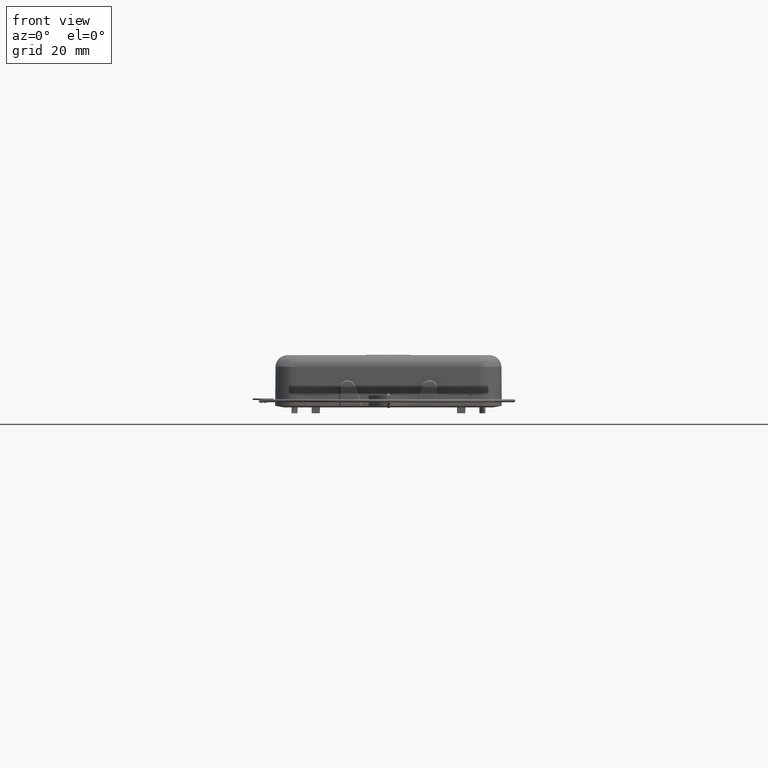
[diagram: clean part render]
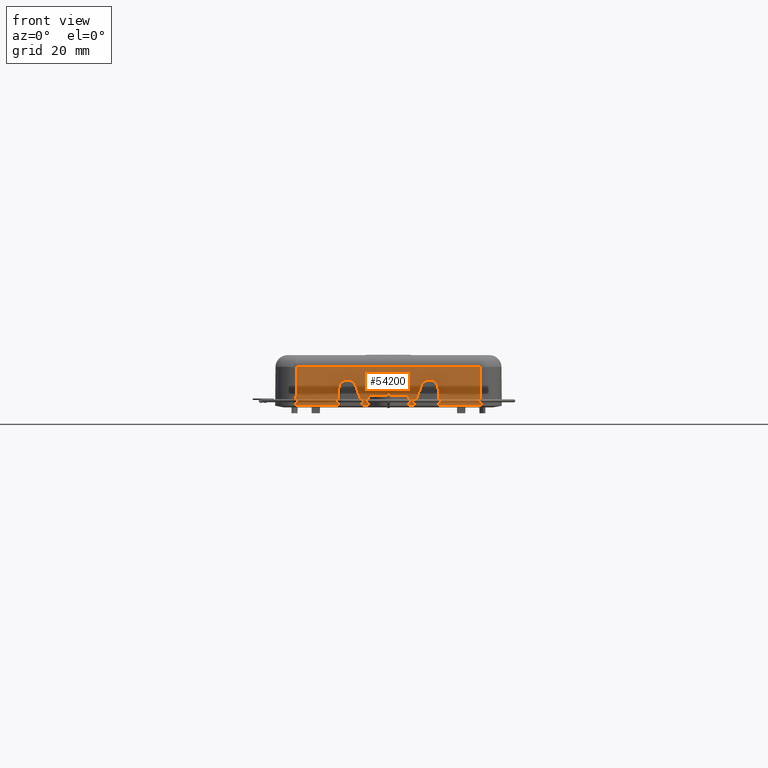
[diagram: same view with one face highlighted and labeled with its STEP entity id]
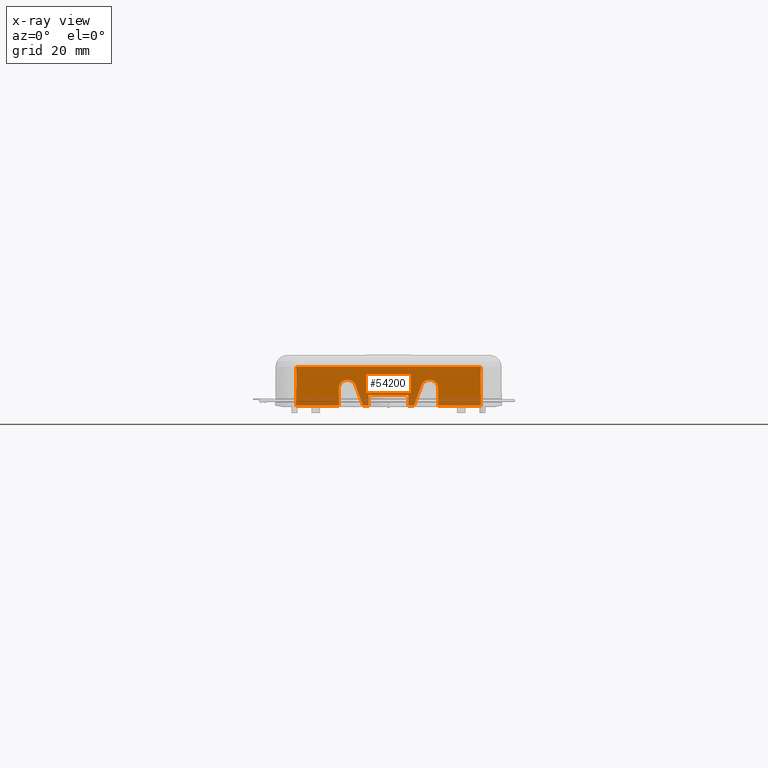
[diagram: x-ray of the same camera — body ghosted, the highlighted face saturated]
A machine part, front view. The second image highlights one B-rep face of the part: STEP entity #54200.
The next image is the same camera in x-ray: the body ghosted, the highlighted face saturated — about 5% of this face is hidden behind the body in this view.
In plain terms, the highlighted planar face has unit normal (-0, 1, -0.0087).
Its self-contained STEP definition (entity closure, byte-faithful):
#1720=CARTESIAN_POINT('',(44.9116194561816,38.9490919692077,-4.));
#1730=VERTEX_POINT('',#1720);
#1960=CARTESIAN_POINT('',(44.9420713150408,38.931510580298,
-0.510562599389786));
#1970=VERTEX_POINT('',#1960);
#2000=CARTESIAN_POINT('',(44.9465269273446,38.928938131335,0.));
#2010=DIRECTION('',(0.00872642474268048,-0.00503820367424958,
0.999949231718764));
#2020=VECTOR('',#2010,1.);
#2030=LINE('',#2000,#2020);
#2040=EDGE_CURVE('',#1730,#1970,#2030,.T.);
#11130=CARTESIAN_POINT('',(44.8284095908831,1.40726083356499,
-13.5349061419935));
#11140=VERTEX_POINT('',#11130);
#19560=CARTESIAN_POINT('',(44.9116194561816,25.6297281021009,-4.));
#19570=VERTEX_POINT('',#19560);
#21850=CARTESIAN_POINT('',(44.9116194561816,0.,-4.));
#21860=DIRECTION('',(0.,-1.,0.));
#21870=VECTOR('',#21860,1.);
#21880=LINE('',#21850,#21870);
#21890=EDGE_CURVE('',#1730,#19570,#21880,.T.);
#36740=CARTESIAN_POINT('',(44.9420713150408,1.2935991094073,
-0.510562599389765));
#36750=VERTEX_POINT('',#36740);
#36780=CARTESIAN_POINT('',(44.9459938400936,1.28967658435444,
-0.0610857484886175));
#36790=DIRECTION('',(0.00872620324394422,-0.00872620324394422,
0.99992385047757));
#36800=VECTOR('',#36790,1.);
#36810=LINE('',#36780,#36800);
#36820=EDGE_CURVE('',#11140,#36750,#36810,.T.);
#44590=CARTESIAN_POINT('',(44.9420713150408,48.9394100356543,
-0.510562599389774));
#44600=VERTEX_POINT('',#44590);
#44630=CARTESIAN_POINT('',(44.9465650050055,48.9394100356543,
0.00436326774918));
#44640=DIRECTION('',(0.00872653549837403,2.13866552087766E-16,
0.999961923064171));
#44650=VECTOR('',#44640,1.);
#44660=LINE('',#44630,#44650);
#44670=CARTESIAN_POINT('',(44.8915857387524,48.9394102822494,
-6.29563663728991));
#44680=VERTEX_POINT('',#44670);
#44690=EDGE_CURVE('',#44680,#44600,#44660,.T.);
#46640=CARTESIAN_POINT('',(44.9420713150408,40.8476997080894,
-0.510562599389772));
#46650=VERTEX_POINT('',#46640);
#46820=CARTESIAN_POINT('',(44.8829299187579,43.314301209594,
-7.28749536621914));
#46830=VERTEX_POINT('',#46820);
#46860=CARTESIAN_POINT('',(44.9465650050055,40.6602820195971,
0.00436326774918082));
#46870=DIRECTION('',(-0.00820029753763353,0.342008643580643,
-0.939661025496122));
#46880=VECTOR('',#46870,1.);
#46890=LINE('',#46860,#46880);
#46900=EDGE_CURVE('',#46650,#46830,#46890,.T.);
#52680=CARTESIAN_POINT('',(44.8829299187579,43.314301209594,
-7.28749536621914));
#52690=CARTESIAN_POINT('',(44.8827188198335,43.3231054771397,
-7.31168490701759));
#52700=CARTESIAN_POINT('',(44.8825087522476,43.3322312016153,
-7.33575626811133));
#52710=CARTESIAN_POINT('',(44.8793209857598,43.4763099551364,
-7.70103812687907));
#52720=CARTESIAN_POINT('',(44.8765836247159,43.6748973721896,
-8.01470863381267));
#52730=CARTESIAN_POINT('',(44.8727170822014,44.0919631751198,
-8.4577705212206));
#52740=CARTESIAN_POINT('',(44.871378395627,44.2771148472761,
-8.61116880873359));
#52750=CARTESIAN_POINT('',(44.869128929468,44.6809094558963,
-8.86893209939729));
#52760=CARTESIAN_POINT('',(44.8682268105651,44.897997513105,
-8.97230468673513));
#52770=CARTESIAN_POINT('',(44.8669090425009,45.3526343047364,
-9.12330595039451));
#52780=CARTESIAN_POINT('',(44.8664984688643,45.588432403312,
-9.17035302919151));
#52790=CARTESIAN_POINT('',(44.8661927174206,46.0662094142278,
-9.20538867439913));
#52800=CARTESIAN_POINT('',(44.8662987168985,46.3063485685894,
-9.1932423373119));
#52810=CARTESIAN_POINT('',(44.8666611678877,46.5422499291146,
-9.15170956772697));
#52820=CARTESIAN_POINT('',(44.867165057391,46.8702065989439,
-9.09396954973156));
#52830=CARTESIAN_POINT('',(44.868158123094,47.1857689953931,
-8.98017549132747));
#52840=CARTESIAN_POINT('',(44.8716746597009,47.8929708100918,
-8.57722030842171));
#52850=CARTESIAN_POINT('',(44.8746269174157,48.2450690427798,
-8.23892508203995));
#52860=CARTESIAN_POINT('',(44.8817482872649,48.7542928335001,
-7.42289692394865));
#52870=CARTESIAN_POINT('',(44.8858057294658,48.9034327501768,
-6.95796009916985));
#52880=CARTESIAN_POINT('',(44.8902997407415,48.9358756828549,
-6.44299741342979));
#52890=CARTESIAN_POINT('',(44.8906050011638,48.9374428927111,
-6.40801803370109));
#52900=CARTESIAN_POINT('',(44.8911352730727,48.939065821262,
-6.34725489145134));
#52910=CARTESIAN_POINT('',(44.891360500827,48.9394102190943,
-6.32144634711361));
#52920=CARTESIAN_POINT('',(44.8915857387524,48.9394102822494,
-6.29563663728991));
#52930=(BOUNDED_CURVE() B_SPLINE_CURVE(3,(#52680,#52690,#52700,#52710,
#52720,#52730,#52740,#52750,#52760,#52770,#52780,#52790,#52800,#52810,
#52820,#52830,#52840,#52850,#52860,#52870,#52880,#52890,#52900,#52910,
#52920),.UNSPECIFIED.,.F.,.F.) B_SPLINE_CURVE_WITH_KNOTS((4,2,2,2,2,2,3,
2,2,2,2,4),(0.,0.0707857369504251,1.07977054407531,1.7347981111436,
2.3898242144324,3.04485161135486,3.69987877285578,4.6105158546595,
5.92574943546881,7.24099120353902,7.33684118012813,7.40757330145207),
.UNSPECIFIED.) CURVE() GEOMETRIC_REPRESENTATION_ITEM() 
RATIONAL_B_SPLINE_CURVE((1.,1.,1.,1.,1.,1.,1.,1.,1.,1.,1.,1.,1.,1.,1.,1.
,1.,1.,1.,1.,1.,1.,1.,1.,1.)) REPRESENTATION_ITEM(''));
#52940=EDGE_CURVE('',#46830,#44680,#52930,.T.);
#52990=CARTESIAN_POINT('',(44.9465269273446,0.,0.));
#53000=DIRECTION('',(-0.999961923064171,0.,0.00872653549837393));
#53010=DIRECTION('',(0.,1.,0.));
#53020=AXIS2_PLACEMENT_3D('',#52990,#53000,#53010);
#53030=PLANE('',#53020);
#53040=CARTESIAN_POINT('',(44.9420713150409,55.7894100356543,
-0.51056259938979));
#53050=DIRECTION('',(1.21585745807815E-16,1.,-2.00295797874922E-16));
#53060=VECTOR('',#53050,1.);
#53070=LINE('',#53040,#53060);
#53080=CARTESIAN_POINT('',(44.9420713150408,15.6394100356536,
-0.510562599389768));
#53090=VERTEX_POINT('',#53080);
#53100=EDGE_CURVE('',#36750,#53090,#53070,.T.);
#53110=ORIENTED_EDGE('',*,*,#53100,.F.);
#53120=CARTESIAN_POINT('',(44.9465650050055,15.6394100356536,
0.00436326774918331));
#53130=DIRECTION('',(-0.00872653549837403,-2.20805445991673E-16,
-0.999961923064171));
#53140=VECTOR('',#53130,1.);
#53150=LINE('',#53120,#53140);
#53160=CARTESIAN_POINT('',(44.8915857369614,15.6394100356536,
-6.29563684252068));
#53170=VERTEX_POINT('',#53160);
#53180=EDGE_CURVE('',#53090,#53170,#53150,.T.);
#53190=ORIENTED_EDGE('',*,*,#53180,.F.);
#53200=CARTESIAN_POINT('',(44.8915857369614,15.6394097309123,
-6.29563684252068));
#53210=CARTESIAN_POINT('',(44.8913607560523,15.6394097189336,
-6.32141710119916));
#53220=CARTESIAN_POINT('',(44.8911357849295,15.6397532002426,
-6.34719623847976));
#53230=CARTESIAN_POINT('',(44.8877057802734,15.6502382243243,
-6.74023584195682));
#53240=CARTESIAN_POINT('',(44.8845368638613,15.7297732026482,
-7.10335769598832));
#53250=CARTESIAN_POINT('',(44.8777213892217,16.0660925120653,
-7.88433373493123));
#53260=CARTESIAN_POINT('',(44.8743401020885,16.3631559067693,
-8.27179086322081));
#53270=CARTESIAN_POINT('',(44.8704397725742,16.9281934187041,
-8.7187243573281));
#53280=CARTESIAN_POINT('',(44.8693511005581,17.133742918045,
-8.84347381408387));
#53290=CARTESIAN_POINT('',(44.8676397292467,17.570822166831,
-9.03957754252546));
#53300=CARTESIAN_POINT('',(44.8670236186799,17.8006689098443,
-9.1101768207086));
#53310=CARTESIAN_POINT('',(44.8666611678877,18.0365701421941,
-9.15170956772698));
#53320=CARTESIAN_POINT('',(44.8661573126689,18.3645044979519,
-9.20944565710919));
#53330=CARTESIAN_POINT('',(44.8661500902048,18.6999350181437,
-9.21027326951996));
#53340=CARTESIAN_POINT('',(44.8669921307119,19.2642708141305,
-9.11378498445541));
#53350=CARTESIAN_POINT('',(44.8675983983857,19.4944794210185,
-9.04431359009981));
#53360=CARTESIAN_POINT('',(44.8692911189862,19.9325494929263,
-8.85034702143957));
#53370=CARTESIAN_POINT('',(44.8703710540458,20.1387238915242,
-8.72659872074171));
#53380=CARTESIAN_POINT('',(44.8742475252343,20.7059942065581,
-8.2823991199855));
#53390=CARTESIAN_POINT('',(44.8776164684839,21.0049725745022,
-7.89635646065213));
#53400=CARTESIAN_POINT('',(44.8817400260413,21.2111785695558,
-7.42384356641972));
#53410=CARTESIAN_POINT('',(44.882018689522,21.2244378342503,
-7.39191189432328));
#53420=CARTESIAN_POINT('',(44.8825082754988,21.2465679211122,
-7.33581089811218));
#53430=CARTESIAN_POINT('',(44.8827185808944,21.2557045108931,
-7.31171228671702));
#53440=CARTESIAN_POINT('',(44.8829299203994,21.2645188868811,
-7.2874951781214));
#53450=(BOUNDED_CURVE() B_SPLINE_CURVE(3,(#53200,#53210,#53220,#53230,
#53240,#53250,#53260,#53270,#53280,#53290,#53300,#53310,#53320,#53330,
#53340,#53350,#53360,#53370,#53380,#53390,#53400,#53410,#53420,#53430,
#53440),.UNSPECIFIED.,.F.,.F.) B_SPLINE_CURVE_WITH_KNOTS((4,2,2,2,2,3,2,
2,2,2,2,4),(0.,0.0708904036494896,1.08116332105811,2.39628098501952,
3.05130914113712,3.70633609180905,4.61691141582108,5.27198603205657,
5.92706184332276,7.2423059437974,7.33695171097097,7.40757659293862),
.UNSPECIFIED.) CURVE() GEOMETRIC_REPRESENTATION_ITEM() 
RATIONAL_B_SPLINE_CURVE((1.,1.,1.,1.,1.,1.,1.,1.,1.,1.,1.,1.,1.,1.,1.,1.
,1.,1.,1.,1.,1.,1.,1.,1.,1.)) REPRESENTATION_ITEM(''));
#53460=CARTESIAN_POINT('',(44.8829299203994,21.2645188868811,
-7.2874951781214));
#53470=VERTEX_POINT('',#53460);
#53480=EDGE_CURVE('',#53170,#53470,#53450,.T.);
#53490=ORIENTED_EDGE('',*,*,#53480,.F.);
#53500=CARTESIAN_POINT('',(44.9465650050055,23.9185380517115,
0.00436326774918367));
#53510=DIRECTION('',(0.00820029753763361,0.342008643580644,
0.939661025496121));
#53520=VECTOR('',#53510,1.);
#53530=LINE('',#53500,#53520);
#53540=CARTESIAN_POINT('',(44.9420713150408,23.7311203632192,
-0.510562599389769));
#53550=VERTEX_POINT('',#53540);
#53560=EDGE_CURVE('',#53470,#53550,#53530,.T.);
#53570=ORIENTED_EDGE('',*,*,#53560,.F.);
#53580=CARTESIAN_POINT('',(44.9420713150409,55.7894100356543,
-0.51056259938979));
#53590=DIRECTION('',(1.21585745807815E-16,1.,-2.00295797874922E-16));
#53600=VECTOR('',#53590,1.);
#53610=LINE('',#53580,#53600);
#53620=CARTESIAN_POINT('',(44.9420713150408,25.6498819399736,
-0.510562599389783));
#53630=VERTEX_POINT('',#53620);
#53640=EDGE_CURVE('',#53550,#53630,#53610,.T.);
#53650=ORIENTED_EDGE('',*,*,#53640,.F.);
#53660=CARTESIAN_POINT('',(44.9465269273447,25.6498819399736,
-4.64893626373105E-15));
#53670=DIRECTION('',(-0.00872653549837403,-9.764007919732E-17,
-0.999961923064171));
#53680=VECTOR('',#53670,1.);
#53690=LINE('',#53660,#53680);
#53700=CARTESIAN_POINT('',(44.9420644588237,25.6498819399736,
-0.511348244054539));
#53710=VERTEX_POINT('',#53700);
#53720=EDGE_CURVE('',#53630,#53710,#53690,.T.);
#53730=ORIENTED_EDGE('',*,*,#53720,.F.);
#53740=CARTESIAN_POINT('',(44.9420644588238,0.,-0.511348244054537));
#53750=DIRECTION('',(-1.22464679914735E-16,-1.,9.9579925010296E-17));
#53760=VECTOR('',#53750,1.);
#53770=LINE('',#53740,#53760);
#53780=CARTESIAN_POINT('',(44.9420644588237,25.6473055325718,
-0.511348244054536));
#53790=VERTEX_POINT('',#53780);
#53800=EDGE_CURVE('',#53710,#53790,#53770,.T.);
#53810=ORIENTED_EDGE('',*,*,#53800,.F.);
#53820=CARTESIAN_POINT('',(44.9465269273446,25.6498819399736,0.));
#53830=DIRECTION('',(-0.00872642474268048,-0.0050382036742496,
-0.999949231718764));
#53840=VECTOR('',#53830,1.);
#53850=LINE('',#53820,#53840);
#53860=EDGE_CURVE('',#53790,#19570,#53850,.T.);
#53870=ORIENTED_EDGE('',*,*,#53860,.F.);
#53880=ORIENTED_EDGE('',*,*,#21890,.T.);
#53890=ORIENTED_EDGE('',*,*,#2040,.F.);
#53900=CARTESIAN_POINT('',(44.9420713150409,55.7894100356543,
-0.51056259938979));
#53910=DIRECTION('',(1.21585745807815E-16,1.,-2.00295797874922E-16));
#53920=VECTOR('',#53910,1.);
#53930=LINE('',#53900,#53920);
#53940=EDGE_CURVE('',#1970,#46650,#53930,.T.);
#53950=ORIENTED_EDGE('',*,*,#53940,.F.);
#53960=ORIENTED_EDGE('',*,*,#46900,.F.);
#53970=ORIENTED_EDGE('',*,*,#52940,.F.);
#53980=ORIENTED_EDGE('',*,*,#44690,.F.);
#53990=CARTESIAN_POINT('',(44.9420713150408,63.2852209619013,
-0.510562599389776));
#54000=VERTEX_POINT('',#53990);
#54010=EDGE_CURVE('',#44600,#54000,#53070,.T.);
#54020=ORIENTED_EDGE('',*,*,#54010,.F.);
#54030=CARTESIAN_POINT('',(44.9459938400936,63.2891434869541,
-0.0610857484886175));
#54040=DIRECTION('',(-0.00872620324394422,-0.00872620324394422,
-0.99992385047757));
#54050=VECTOR('',#54040,1.);
#54060=LINE('',#54030,#54050);
#54070=CARTESIAN_POINT('',(44.8284095908831,63.1715592377436,
-13.5349061419935));
#54080=VERTEX_POINT('',#54070);
#54090=EDGE_CURVE('',#54000,#54080,#54060,.T.);
#54100=ORIENTED_EDGE('',*,*,#54090,.F.);
#54110=CARTESIAN_POINT('',(44.8284095908831,0.,-13.5349061419935));
#54120=DIRECTION('',(0.,-1.,0.));
#54130=VECTOR('',#54120,1.);
#54140=LINE('',#54110,#54130);
#54150=EDGE_CURVE('',#54080,#11140,#54140,.T.);
#54160=ORIENTED_EDGE('',*,*,#54150,.F.);
#54170=ORIENTED_EDGE('',*,*,#36820,.F.);
#54180=EDGE_LOOP('',(#54170,#54160,#54100,#54020,#53980,#53970,#53960,
#53950,#53890,#53880,#53870,#53810,#53730,#53650,#53570,#53490,#53190,
#53110));
#54190=FACE_OUTER_BOUND('',#54180,.T.);
#54200=ADVANCED_FACE('',(#54190),#53030,.F.);